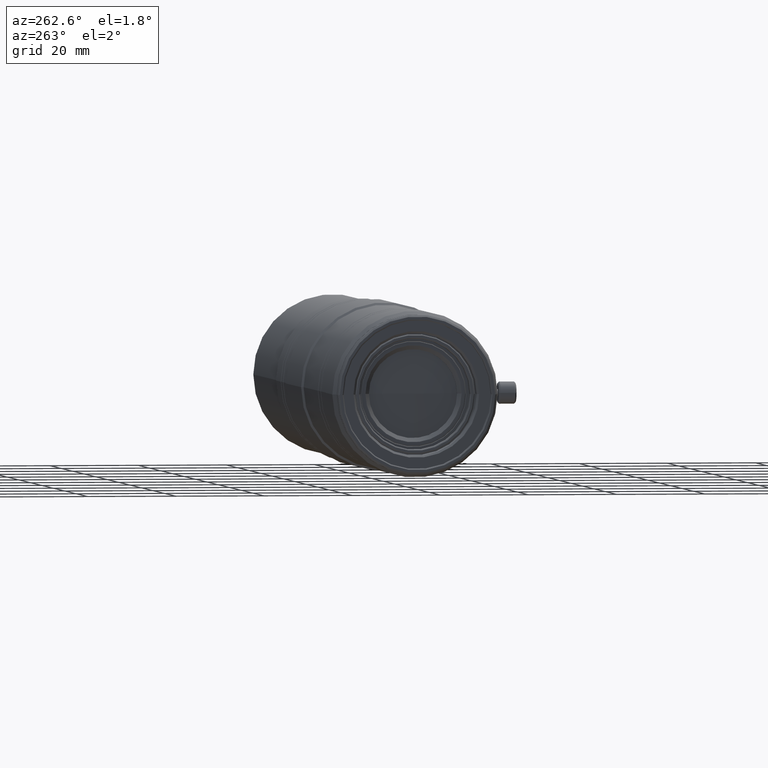
[diagram: clean part render]
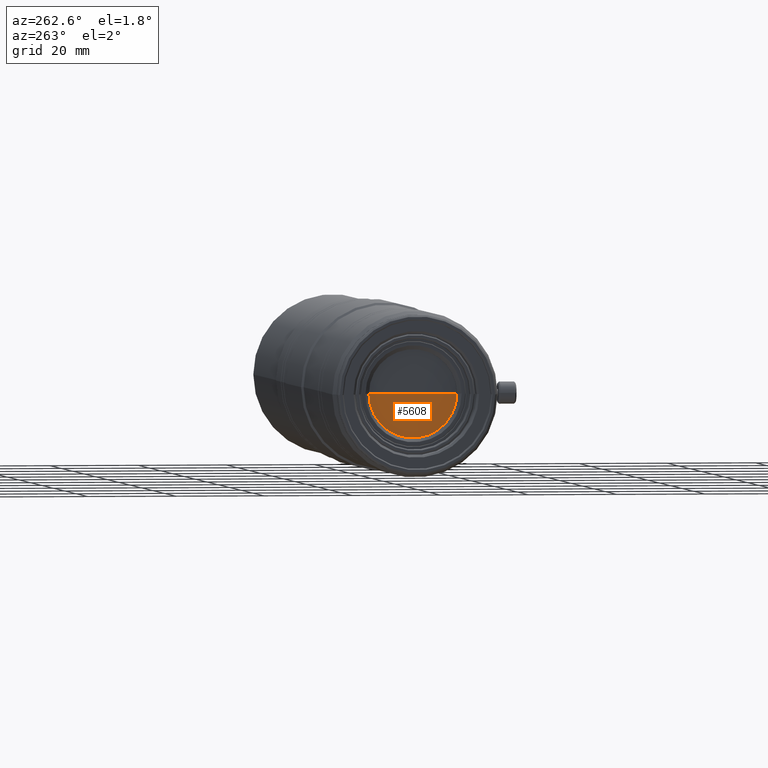
[diagram: same view with one face highlighted and labeled with its STEP entity id]
A machine part, auxiliary view. The second image highlights one B-rep face of the part: STEP entity #5608.
In plain terms, the highlighted spherical surface has radius 131.8 mm.
Its self-contained STEP definition (entity closure, byte-faithful):
#511 = VERTEX_POINT ( 'NONE', #851 ) ;
#710 = DIRECTION ( 'NONE',  ( -1.000000000000000000, -4.558507189758049000E-015, -0.0000000000000000000 ) ) ;
#851 = CARTESIAN_POINT ( 'NONE',  ( 8.060974633347317600, -8.078465362248535800E-013, 0.0000000000000000000 ) ) ;
#1129 = SPHERICAL_SURFACE ( 'NONE', #6295, 131.7999999999999500 ) ;
#1270 = AXIS2_PLACEMENT_3D ( 'NONE', #4075, #710, #4633 ) ;
#1452 = CARTESIAN_POINT ( 'NONE',  ( 8.448532300058344500, 10.10000000000005800, 0.0000000000000000000 ) ) ;
#1468 = FACE_OUTER_BOUND ( 'NONE', #6353, .T. ) ;
#1804 = EDGE_CURVE ( 'NONE', #4569, #511, #4763, .T. ) ;
#2297 = CIRCLE ( 'NONE', #1270, 10.10000000000006700 ) ;
#2633 = ORIENTED_EDGE ( 'NONE', *, *, #6283, .F. ) ;
#2774 = VERTEX_POINT ( 'NONE', #1452 ) ;
#3026 = CARTESIAN_POINT ( 'NONE',  ( 139.8609746333472700, -2.151057110211240800E-013, 0.0000000000000000000 ) ) ;
#3344 = EDGE_CURVE ( 'NONE', #2774, #4569, #2297, .T. ) ;
#3597 = DIRECTION ( 'NONE',  ( 1.000000000000000000, 0.0000000000000000000, 0.0000000000000000000 ) ) ;
#3638 = DIRECTION ( 'NONE',  ( -4.632948888799972000E-015, 1.000000000000000000, 0.0000000000000000000 ) ) ;
#4075 = CARTESIAN_POINT ( 'NONE',  ( 8.448532300058390700, -7.632772272266491200E-015, 0.0000000000000000000 ) ) ;
#4355 = CARTESIAN_POINT ( 'NONE',  ( 139.8609746333472700, -2.151057110211240800E-013, 0.0000000000000000000 ) ) ;
#4569 = VERTEX_POINT ( 'NONE', #6663 ) ;
#4633 = DIRECTION ( 'NONE',  ( 4.637379589244898900E-015, -1.000000000000000000, 0.0000000000000000000 ) ) ;
#4759 = DIRECTION ( 'NONE',  ( -0.0000000000000000000, 0.0000000000000000000, -1.000000000000000000 ) ) ;
#4763 = CIRCLE ( 'NONE', #5603, 131.7999999999999500 ) ;
#4789 = DIRECTION ( 'NONE',  ( 0.0000000000000000000, 1.000000000000000000, 1.224646799147353000E-016 ) ) ;
#5408 = ORIENTED_EDGE ( 'NONE', *, *, #1804, .T. ) ;
#5501 = AXIS2_PLACEMENT_3D ( 'NONE', #3026, #6969, #3597 ) ;
#5603 = AXIS2_PLACEMENT_3D ( 'NONE', #4355, #7245, #4789 ) ;
#5608 = ADVANCED_FACE ( 'NONE', ( #1468 ), #1129, .T. ) ;
#5882 = CARTESIAN_POINT ( 'NONE',  ( 139.8609746333472700, -2.151057110211240800E-013, 0.0000000000000000000 ) ) ;
#6009 = ORIENTED_EDGE ( 'NONE', *, *, #3344, .T. ) ;
#6283 = EDGE_CURVE ( 'NONE', #2774, #511, #7151, .T. ) ;
#6295 = AXIS2_PLACEMENT_3D ( 'NONE', #5882, #4759, #3638 ) ;
#6353 = EDGE_LOOP ( 'NONE', ( #6009, #5408, #2633 ) ) ;
#6663 = CARTESIAN_POINT ( 'NONE',  ( 8.448532300058438700, -10.10000000000007600, 1.236893267138834900E-015 ) ) ;
#6969 = DIRECTION ( 'NONE',  ( -0.0000000000000000000, 0.0000000000000000000, 1.000000000000000000 ) ) ;
#7151 = CIRCLE ( 'NONE', #5501, 131.7999999999999500 ) ;
#7245 = DIRECTION ( 'NONE',  ( -5.582561238827390900E-031, 1.224646799147353200E-016, -1.000000000000000000 ) ) ;